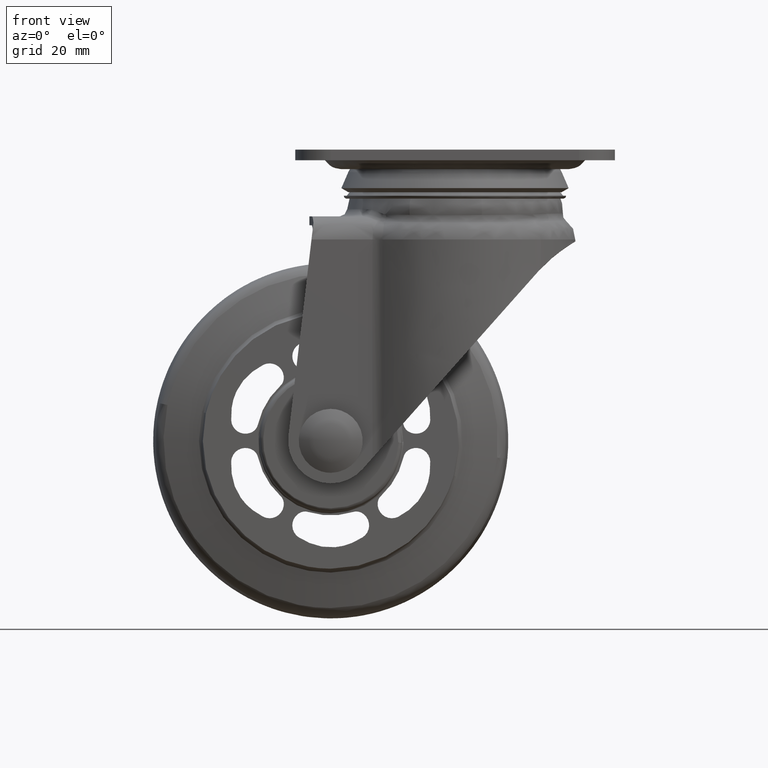
[diagram: clean part render]
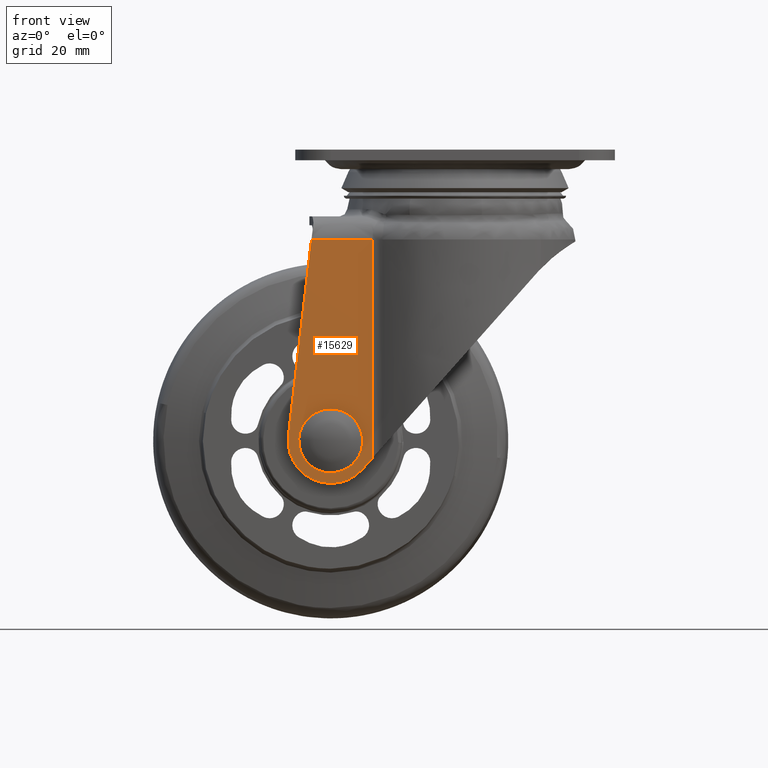
[diagram: same view with one face highlighted and labeled with its STEP entity id]
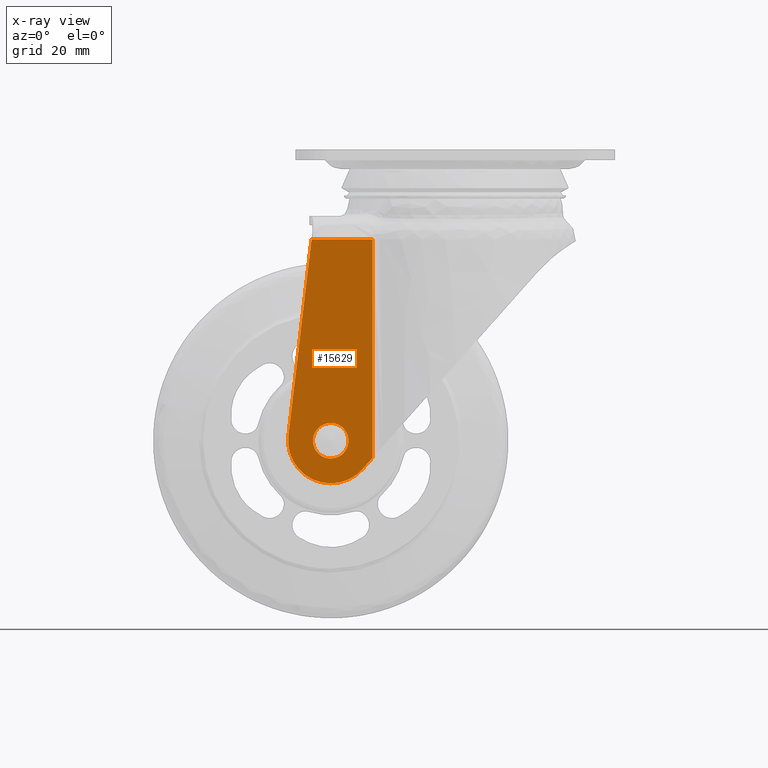
[diagram: x-ray of the same camera — body ghosted, the highlighted face saturated]
A machine part, front view. The second image highlights one B-rep face of the part: STEP entity #15629.
The next image is the same camera in x-ray: the body ghosted, the highlighted face saturated — about 0% of this face is hidden behind the body in this view.
In plain terms, the highlighted face is a freeform B-spline surface patch.
Its self-contained STEP definition (entity closure, byte-faithful):
#10960=CARTESIAN_POINT('',(3.069332082665355,-25.500000000000000,3.947049602718612));
#10961=VERTEX_POINT('',#10960);
#10962=CARTESIAN_POINT('',(0.0,-25.500000000000000,5.0));
#10963=VERTEX_POINT('',#10962);
#10964=CARTESIAN_POINT('',(3.069332082665355,-25.500000000000004,3.947049602718612));
#10965=CARTESIAN_POINT('',(1.715276107185098,-25.500000000000000,4.999999999999999));
#10966=CARTESIAN_POINT('',(0.0,-25.500000000000000,5.0));
#10974=(BOUNDED_CURVE()B_SPLINE_CURVE(2,(#10964,#10965,#10966),.UNSPECIFIED.,.F.,.U.)B_SPLINE_CURVE_WITH_KNOTS((3,3),(0.893802175131556,1.0),.UNSPECIFIED.)CURVE()GEOMETRIC_REPRESENTATION_ITEM()RATIONAL_B_SPLINE_CURVE((0.856866802910054,0.875581508973176,1.0))REPRESENTATION_ITEM(''));
#10975=EDGE_CURVE('',#10961,#10963,#10974,.T.);
#10977=CARTESIAN_POINT('',(0.0,-25.500000000000000,-5.0));
#10978=VERTEX_POINT('',#10977);
#10979=CARTESIAN_POINT('',(0.0,-25.500000000000000,5.0));
#10980=CARTESIAN_POINT('',(-5.000000000000001,-25.499999999999993,5.000000000000001));
#10981=CARTESIAN_POINT('',(-5.0,-25.500000000000000,0.0));
#10982=CARTESIAN_POINT('',(-5.000000000000001,-25.499999999999993,-5.000000000000001));
#10983=CARTESIAN_POINT('',(0.0,-25.500000000000000,-5.0));
#10991=(BOUNDED_CURVE()B_SPLINE_CURVE(2,(#10979,#10980,#10981,#10982,#10983),.UNSPECIFIED.,.F.,.U.)B_SPLINE_CURVE_WITH_KNOTS((3,2,3),(0.0,0.250000000000000,0.500000000000000),.UNSPECIFIED.)CURVE()GEOMETRIC_REPRESENTATION_ITEM()RATIONAL_B_SPLINE_CURVE((1.0,0.707106781186548,1.0,0.707106781186548,1.0))REPRESENTATION_ITEM(''));
#10992=EDGE_CURVE('',#10963,#10978,#10991,.T.);
#10994=CARTESIAN_POINT('',(3.566252719794913,-25.500000000000060,-3.504545839128791));
#10995=VERTEX_POINT('',#10994);
#10996=CARTESIAN_POINT('',(0.0,-25.500000000000000,-5.0));
#10997=CARTESIAN_POINT('',(2.096674804012237,-25.499999999999996,-5.0));
#10998=CARTESIAN_POINT('',(3.566252719794913,-25.500000000000068,-3.504545839128790));
#11006=(BOUNDED_CURVE()B_SPLINE_CURVE(2,(#10996,#10997,#10998),.UNSPECIFIED.,.F.,.U.)B_SPLINE_CURVE_WITH_KNOTS((3,3),(0.500000000000000,0.626316798410109),.UNSPECIFIED.)CURVE()GEOMETRIC_REPRESENTATION_ITEM()RATIONAL_B_SPLINE_CURVE((1.0,0.852010665293813,0.853569642259046))REPRESENTATION_ITEM(''));
#11007=EDGE_CURVE('',#10978,#10995,#11006,.T.);
#11076=CARTESIAN_POINT('',(3.566252719794913,-25.500000000000068,-3.504545839128790));
#11077=CARTESIAN_POINT('',(5.0,-25.500000000000004,-2.045553217646588));
#11078=CARTESIAN_POINT('',(5.0,-25.500000000000000,0.0));
#11079=CARTESIAN_POINT('',(5.0,-25.500000000000004,2.445710228727868));
#11080=CARTESIAN_POINT('',(3.069332082665354,-25.500000000000000,3.947049602718612));
#11088=(BOUNDED_CURVE()B_SPLINE_CURVE(2,(#11076,#11077,#11078,#11079,#11080),.UNSPECIFIED.,.F.,.U.)B_SPLINE_CURVE_WITH_KNOTS((3,2,3),(0.626316798410110,0.750000000000000,0.893802175131555),.UNSPECIFIED.)CURVE()GEOMETRIC_REPRESENTATION_ITEM()RATIONAL_B_SPLINE_CURVE((0.853569642259046,0.855096115892736,1.0,0.831525272213372,0.856866802910054))REPRESENTATION_ITEM(''));
#11089=EDGE_CURVE('',#10995,#10961,#11088,.T.);
#13175=CARTESIAN_POINT('',(11.775535386729960,-25.500000000000000,56.699997000000003));
#13176=VERTEX_POINT('',#13175);
#13267=CARTESIAN_POINT('',(11.775535386730100,-25.500000000000000,-4.813197301289820));
#13268=VERTEX_POINT('',#13267);
#13288=CARTESIAN_POINT('',(11.775535386730100,-25.500000000000000,-4.813197301289820));
#13289=CARTESIAN_POINT('',(11.775535386729960,-25.500000000000000,56.699997000000003));
#13290=QUASI_UNIFORM_CURVE('',1,(#13288,#13289),.UNSPECIFIED.,.F.,.U.);
#13291=EDGE_CURVE('',#13268,#13176,#13290,.T.);
#15579=CARTESIAN_POINT('',(12.962802888623109,-25.500000000000000,-15.431563744139510));
#15580=CARTESIAN_POINT('',(-13.180848151722810,-25.500000000000000,-15.431563744139510));
#15581=CARTESIAN_POINT('',(12.962802888623109,-25.500000000000000,60.131563513128299));
#15582=CARTESIAN_POINT('',(-13.180848151722810,-25.500000000000000,60.131563513128299));
#15583=B_SPLINE_SURFACE_WITH_KNOTS('',1,1,((#15579,#15581),(#15580,#15582)),.UNSPECIFIED.,.F.,.F.,.U.,(2,2),(2,2),(0.0,26.143651040345919),(0.0,75.563127257267809),.UNSPECIFIED.);
#15584=CARTESIAN_POINT('',(8.971066188851571,-25.499999999993850,-7.969941746038311));
#15585=VERTEX_POINT('',#15584);
#15586=CARTESIAN_POINT('',(8.971066188851571,-25.499999999993850,-7.969941746038311));
#15587=CARTESIAN_POINT('',(11.775535386730100,-25.500000000000000,-4.813197301289820));
#15588=QUASI_UNIFORM_CURVE('',1,(#15586,#15587),.UNSPECIFIED.,.F.,.U.);
#15589=EDGE_CURVE('',#15585,#13268,#15588,.T.);
#15590=ORIENTED_EDGE('',*,*,#15589,.T.);
#15591=ORIENTED_EDGE('',*,*,#13291,.T.);
#15592=CARTESIAN_POINT('',(-5.411788297318810,-25.500000000000000,56.699997000000103));
#15593=VERTEX_POINT('',#15592);
#15594=CARTESIAN_POINT('',(11.775535386729960,-25.500000000000000,56.699997000000003));
#15595=CARTESIAN_POINT('',(-5.411788297318810,-25.500000000000000,56.699997000000103));
#15596=QUASI_UNIFORM_CURVE('',1,(#15594,#15595),.UNSPECIFIED.,.F.,.U.);
#15597=EDGE_CURVE('',#13176,#15593,#15596,.T.);
#15598=ORIENTED_EDGE('',*,*,#15597,.T.);
#15599=CARTESIAN_POINT('',(-11.917797676107821,-25.499999999993850,1.402176362430494));
#15600=VERTEX_POINT('',#15599);
#15601=CARTESIAN_POINT('',(-5.411788297318810,-25.500000000000000,56.699997000000103));
#15602=CARTESIAN_POINT('',(-11.917797676107821,-25.499999999993850,1.402176362430494));
#15603=QUASI_UNIFORM_CURVE('',1,(#15601,#15602),.UNSPECIFIED.,.F.,.U.);
#15604=EDGE_CURVE('',#15593,#15600,#15603,.T.);
#15605=ORIENTED_EDGE('',*,*,#15604,.T.);
#15606=CARTESIAN_POINT('',(8.971066188851571,-25.499999999993850,-7.969941746038309));
#15607=CARTESIAN_POINT('',(3.122332968449645,-25.499999999993850,-14.553349067332990));
#15608=CARTESIAN_POINT('',(-4.912225165265642,-25.499999999993850,-10.948517887172260));
#15609=CARTESIAN_POINT('',(-12.946783298980932,-25.499999999993850,-7.343686707011536));
#15610=CARTESIAN_POINT('',(-11.917797676107829,-25.499999999993850,1.402176362430490));
#15618=(BOUNDED_CURVE()B_SPLINE_CURVE(2,(#15606,#15607,#15608,#15609,#15610),.UNSPECIFIED.,.F.,.U.)B_SPLINE_CURVE_WITH_KNOTS((3,2,3),(0.0,0.500000000000000,1.0),.UNSPECIFIED.)CURVE()GEOMETRIC_REPRESENTATION_ITEM()RATIONAL_B_SPLINE_CURVE((1.0,0.806206722942904,1.0,0.806206722942904,1.0))REPRESENTATION_ITEM(''));
#15619=EDGE_CURVE('',#15585,#15600,#15618,.T.);
#15620=ORIENTED_EDGE('',*,*,#15619,.F.);
#15621=EDGE_LOOP('',(#15590,#15591,#15598,#15605,#15620));
#15622=FACE_OUTER_BOUND('',#15621,.T.);
#15623=ORIENTED_EDGE('',*,*,#10992,.F.);
#15624=ORIENTED_EDGE('',*,*,#10975,.F.);
#15625=ORIENTED_EDGE('',*,*,#11089,.F.);
#15626=ORIENTED_EDGE('',*,*,#11007,.F.);
#15627=EDGE_LOOP('',(#15623,#15624,#15625,#15626));
#15628=FACE_BOUND('',#15627,.T.);
#15629=ADVANCED_FACE('',(#15622,#15628),#15583,.F.);